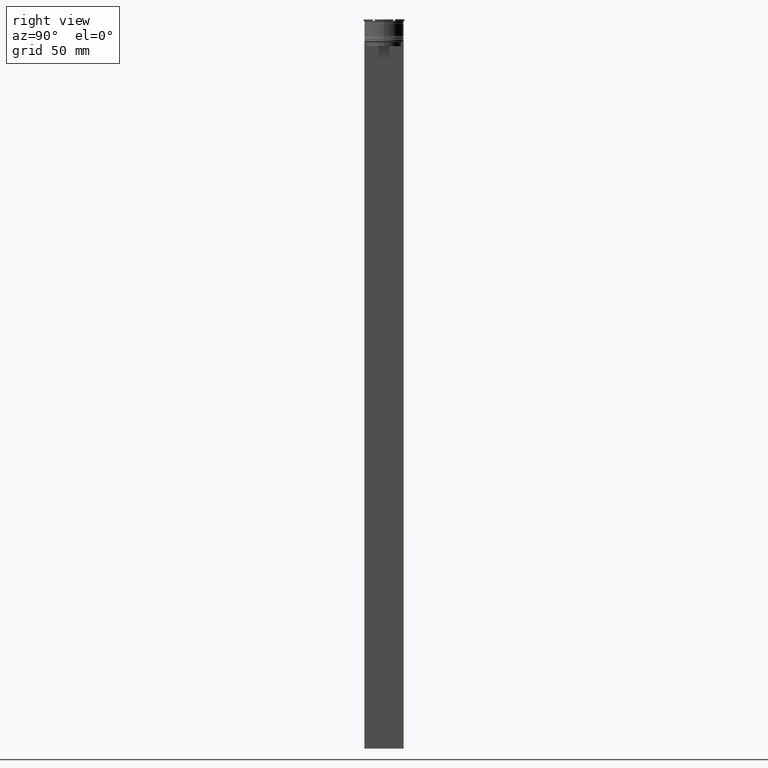
[diagram: clean part render]
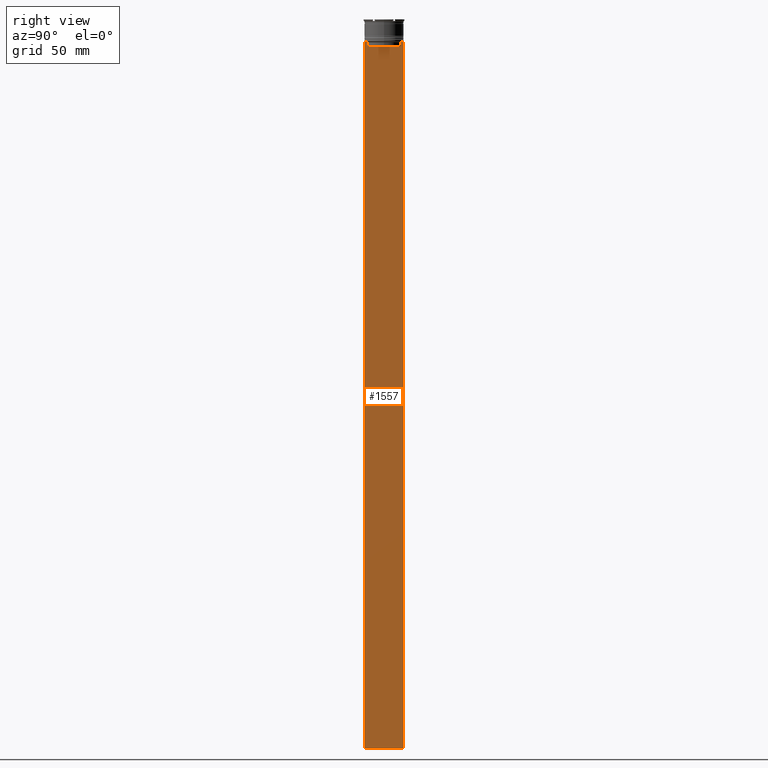
[diagram: same view with one face highlighted and labeled with its STEP entity id]
A machine part, right view. The second image highlights one B-rep face of the part: STEP entity #1557.
In plain terms, the highlighted planar face has unit normal (-1, 0, 0).
Its self-contained STEP definition (entity closure, byte-faithful):
#8 = VECTOR ( 'NONE', #878, 1000.000000000000000 ) ;
#91 = VERTEX_POINT ( 'NONE', #111 ) ;
#105 = VERTEX_POINT ( 'NONE', #1309 ) ;
#111 = CARTESIAN_POINT ( 'NONE',  ( 0.5000000000000000000, 12.38991525394746773, -14.00000000000000178 ) ) ;
#156 = LINE ( 'NONE', #1687, #1895 ) ;
#281 = VECTOR ( 'NONE', #1318, 1000.000000000000000 ) ;
#293 = CARTESIAN_POINT ( 'NONE',  ( 0.5000000000000000000, -12.49999999999999289, -14.00000000000000178 ) ) ;
#294 = VERTEX_POINT ( 'NONE', #2689 ) ;
#340 = CARTESIAN_POINT ( 'NONE',  ( 0.5000000000000000000, 10.90000000000000213, -17.00000000000000000 ) ) ;
#361 = VERTEX_POINT ( 'NONE', #1855 ) ;
#421 = CARTESIAN_POINT ( 'NONE',  ( 0.5000000000000000000, -10.88852607105296322, 0.000000000000000000 ) ) ;
#505 = EDGE_CURVE ( 'NONE', #294, #361, #1886, .T. ) ;
#507 = LINE ( 'NONE', #1192, #988 ) ;
#534 = VERTEX_POINT ( 'NONE', #1566 ) ;
#542 = VERTEX_POINT ( 'NONE', #1378 ) ;
#552 = LINE ( 'NONE', #1612, #2111 ) ;
#572 = ORIENTED_EDGE ( 'NONE', *, *, #632, .T. ) ;
#605 = DIRECTION ( 'NONE',  ( 0.000000000000000000, -1.000000000000000000, 0.000000000000000000 ) ) ;
#632 = EDGE_CURVE ( 'NONE', #2507, #2318, #1997, .T. ) ;
#696 = DIRECTION ( 'NONE',  ( 0.000000000000000000, 0.000000000000000000, -1.000000000000000000 ) ) ;
#739 = EDGE_CURVE ( 'NONE', #1021, #294, #552, .T. ) ;
#748 = DIRECTION ( 'NONE',  ( -1.000000000000000000, 0.000000000000000000, 0.000000000000000000 ) ) ;
#814 = EDGE_LOOP ( 'NONE', ( #1004, #1875, #901, #2322, #572, #2605, #2421, #1190, #2373, #2539, #896, #1822 ) ) ;
#878 = DIRECTION ( 'NONE',  ( -0.000000000000000000, -0.000000000000000000, 1.000000000000000000 ) ) ;
#887 = EDGE_CURVE ( 'NONE', #105, #1693, #2225, .T. ) ;
#896 = ORIENTED_EDGE ( 'NONE', *, *, #1538, .F. ) ;
#901 = ORIENTED_EDGE ( 'NONE', *, *, #2501, .T. ) ;
#988 = VECTOR ( 'NONE', #2082, 1000.000000000000000 ) ;
#1004 = ORIENTED_EDGE ( 'NONE', *, *, #1990, .T. ) ;
#1021 = VERTEX_POINT ( 'NONE', #2470 ) ;
#1047 = DIRECTION ( 'NONE',  ( 0.000000000000000000, 0.000000000000000000, -1.000000000000000000 ) ) ;
#1151 = CARTESIAN_POINT ( 'NONE',  ( 0.5000000000000000000, -11.22219891450652973, -14.16667035398018903 ) ) ;
#1179 = LINE ( 'NONE', #1841, #1363 ) ;
#1190 = ORIENTED_EDGE ( 'NONE', *, *, #1918, .T. ) ;
#1192 = CARTESIAN_POINT ( 'NONE',  ( 0.5000000000000000000, -12.49999999999999289, -14.00000000000000178 ) ) ;
#1261 = LINE ( 'NONE', #340, #1883 ) ;
#1309 = CARTESIAN_POINT ( 'NONE',  ( 0.5000000000000000000, 11.38902980942626719, -14.00000000000000178 ) ) ;
#1318 = DIRECTION ( 'NONE',  ( 0.000000000000000000, 1.000000000000000000, 0.000000000000000000 ) ) ;
#1363 = VECTOR ( 'NONE', #696, 1000.000000000000000 ) ;
#1368 = CARTESIAN_POINT ( 'NONE',  ( 0.5000000000000000000, -12.49999999999999289, 11.01999200639360765 ) ) ;
#1378 = CARTESIAN_POINT ( 'NONE',  ( 0.5000000000000000000, 10.88852607105296144, -17.00000000000000000 ) ) ;
#1383 = LINE ( 'NONE', #1870, #1736 ) ;
#1471 = EDGE_CURVE ( 'NONE', #1707, #91, #1383, .T. ) ;
#1491 = EDGE_CURVE ( 'NONE', #2318, #534, #1837, .T. ) ;
#1529 = CARTESIAN_POINT ( 'NONE',  ( 0.5000000000000000000, 11.38902980942626719, -14.00000000000000178 ) ) ;
#1538 = EDGE_CURVE ( 'NONE', #1707, #361, #1179, .T. ) ;
#1557 = ADVANCED_FACE ( 'NONE', ( #2730 ), #1605, .F. ) ;
#1566 = CARTESIAN_POINT ( 'NONE',  ( 0.5000000000000000000, -11.38902980942626719, -14.00000000000000178 ) ) ;
#1605 = PLANE ( 'NONE',  #2110 ) ;
#1612 = CARTESIAN_POINT ( 'NONE',  ( 0.5000000000000000000, -12.49999999999999289, 11.01999200639360765 ) ) ;
#1658 = EDGE_CURVE ( 'NONE', #542, #2507, #1261, .T. ) ;
#1687 = CARTESIAN_POINT ( 'NONE',  ( 0.5000000000000000000, 10.88852607105296322, 0.000000000000000000 ) ) ;
#1693 = VERTEX_POINT ( 'NONE', #2749 ) ;
#1707 = VERTEX_POINT ( 'NONE', #2154 ) ;
#1713 = EDGE_CURVE ( 'NONE', #534, #2097, #2595, .T. ) ;
#1736 = VECTOR ( 'NONE', #1856, 1000.000000000000000 ) ;
#1807 = CARTESIAN_POINT ( 'NONE',  ( 0.5000000000000000000, -10.88852607105296322, -14.50000000000000000 ) ) ;
#1822 = ORIENTED_EDGE ( 'NONE', *, *, #1471, .T. ) ;
#1837 = B_SPLINE_CURVE_WITH_KNOTS ( 'NONE', 3,
 ( #2495, #2505, #1151, #2690 ),
 .UNSPECIFIED., .F., .F.,
 ( 4, 4 ),
 ( 0.05041323384703226551, 0.05112713601261605068 ),
 .UNSPECIFIED. ) ;
#1838 = VECTOR ( 'NONE', #1853, 1000.000000000000000 ) ;
#1841 = CARTESIAN_POINT ( 'NONE',  ( 0.5000000000000000000, 12.50000000000000711, 11.01999200639360765 ) ) ;
#1853 = DIRECTION ( 'NONE',  ( 0.000000000000000000, -1.000000000000000000, 0.000000000000000000 ) ) ;
#1855 = CARTESIAN_POINT ( 'NONE',  ( 0.5000000000000000000, 12.50000000000000711, -464.0000000000000000 ) ) ;
#1856 = DIRECTION ( 'NONE',  ( 0.000000000000000000, -1.000000000000000000, 0.000000000000000000 ) ) ;
#1870 = CARTESIAN_POINT ( 'NONE',  ( 0.5000000000000000000, -12.49999999999999289, -14.00000000000000178 ) ) ;
#1875 = ORIENTED_EDGE ( 'NONE', *, *, #887, .T. ) ;
#1883 = VECTOR ( 'NONE', #2806, 1000.000000000000000 ) ;
#1886 = LINE ( 'NONE', #2746, #281 ) ;
#1895 = VECTOR ( 'NONE', #1047, 1000.000000000000000 ) ;
#1913 = CARTESIAN_POINT ( 'NONE',  ( 0.5000000000000000000, 10.88852607105296322, -14.50000000000000000 ) ) ;
#1918 = EDGE_CURVE ( 'NONE', #2097, #1021, #2492, .T. ) ;
#1950 = CARTESIAN_POINT ( 'NONE',  ( 0.5000000000000000000, -10.88852607105296144, -17.00000000000000000 ) ) ;
#1990 = EDGE_CURVE ( 'NONE', #91, #105, #507, .T. ) ;
#1997 = LINE ( 'NONE', #421, #8 ) ;
#2065 = DIRECTION ( 'NONE',  ( 0.000000000000000000, 0.000000000000000000, -1.000000000000000000 ) ) ;
#2082 = DIRECTION ( 'NONE',  ( 0.000000000000000000, -1.000000000000000000, 0.000000000000000000 ) ) ;
#2097 = VERTEX_POINT ( 'NONE', #2363 ) ;
#2110 = AXIS2_PLACEMENT_3D ( 'NONE', #1368, #748, #2258 ) ;
#2111 = VECTOR ( 'NONE', #2065, 1000.000000000000000 ) ;
#2138 = CARTESIAN_POINT ( 'NONE',  ( 0.5000000000000000000, 11.22219891375843304, -14.16667035472756808 ) ) ;
#2154 = CARTESIAN_POINT ( 'NONE',  ( 0.5000000000000000000, 12.50000000000000711, -14.00000000000000178 ) ) ;
#2160 = VECTOR ( 'NONE', #605, 1000.000000000000000 ) ;
#2225 = B_SPLINE_CURVE_WITH_KNOTS ( 'NONE', 3,
 ( #1529, #2138, #2405, #1913 ),
 .UNSPECIFIED., .F., .F.,
 ( 4, 4 ),
 ( 0.01935560801904634073, 0.02006307108468586772 ),
 .UNSPECIFIED. ) ;
#2258 = DIRECTION ( 'NONE',  ( 0.000000000000000000, 0.000000000000000000, 1.000000000000000000 ) ) ;
#2318 = VERTEX_POINT ( 'NONE', #1807 ) ;
#2322 = ORIENTED_EDGE ( 'NONE', *, *, #1658, .T. ) ;
#2363 = CARTESIAN_POINT ( 'NONE',  ( 0.5000000000000000000, -12.38991525394746773, -14.00000000000000178 ) ) ;
#2373 = ORIENTED_EDGE ( 'NONE', *, *, #739, .T. ) ;
#2405 = CARTESIAN_POINT ( 'NONE',  ( 0.5000000000000000000, 11.05536450345590538, -14.33333719074559376 ) ) ;
#2421 = ORIENTED_EDGE ( 'NONE', *, *, #1713, .T. ) ;
#2470 = CARTESIAN_POINT ( 'NONE',  ( 0.5000000000000000000, -12.49999999999999289, -14.00000000000000178 ) ) ;
#2492 = LINE ( 'NONE', #293, #1838 ) ;
#2495 = CARTESIAN_POINT ( 'NONE',  ( 0.5000000000000000000, -10.88852607105296322, -14.50000000000000000 ) ) ;
#2501 = EDGE_CURVE ( 'NONE', #1693, #542, #156, .T. ) ;
#2505 = CARTESIAN_POINT ( 'NONE',  ( 0.5000000000000000000, -11.05536450423839234, -14.33333718996393102 ) ) ;
#2507 = VERTEX_POINT ( 'NONE', #1950 ) ;
#2535 = CARTESIAN_POINT ( 'NONE',  ( 0.5000000000000000000, -12.49999999999999289, -14.00000000000000178 ) ) ;
#2539 = ORIENTED_EDGE ( 'NONE', *, *, #505, .T. ) ;
#2595 = LINE ( 'NONE', #2535, #2160 ) ;
#2605 = ORIENTED_EDGE ( 'NONE', *, *, #1491, .T. ) ;
#2689 = CARTESIAN_POINT ( 'NONE',  ( 0.5000000000000000000, -12.49999999999999289, -464.0000000000000000 ) ) ;
#2690 = CARTESIAN_POINT ( 'NONE',  ( 0.5000000000000000000, -11.38902980942626719, -14.00000000000000178 ) ) ;
#2730 = FACE_OUTER_BOUND ( 'NONE', #814, .T. ) ;
#2746 = CARTESIAN_POINT ( 'NONE',  ( 0.5000000000000000000, -12.49999999999999289, -464.0000000000000000 ) ) ;
#2749 = CARTESIAN_POINT ( 'NONE',  ( 0.5000000000000000000, 10.88852607105296322, -14.50000000000000000 ) ) ;
#2806 = DIRECTION ( 'NONE',  ( 0.000000000000000000, -1.000000000000000000, 0.000000000000000000 ) ) ;